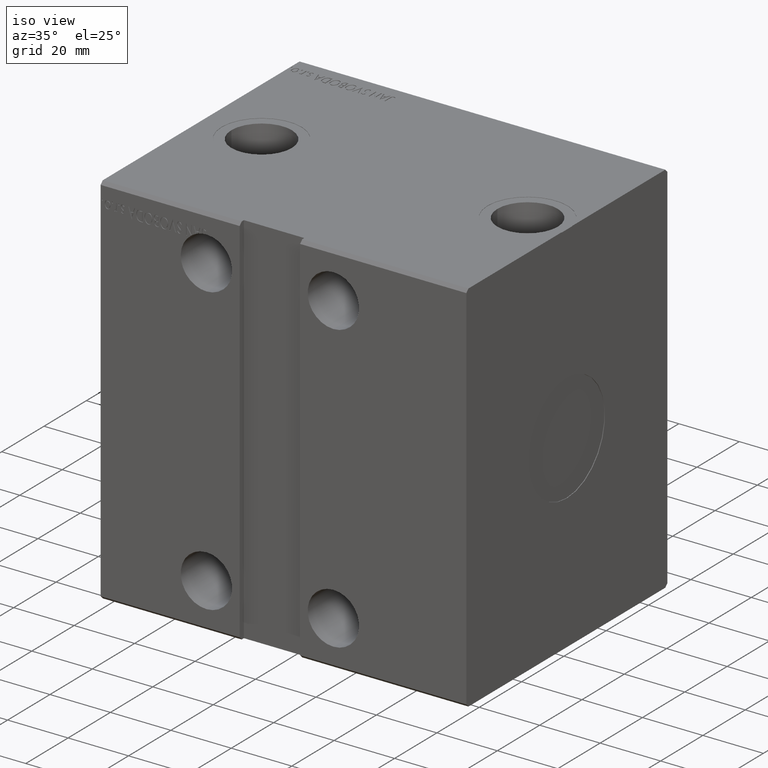
[diagram: clean part render]
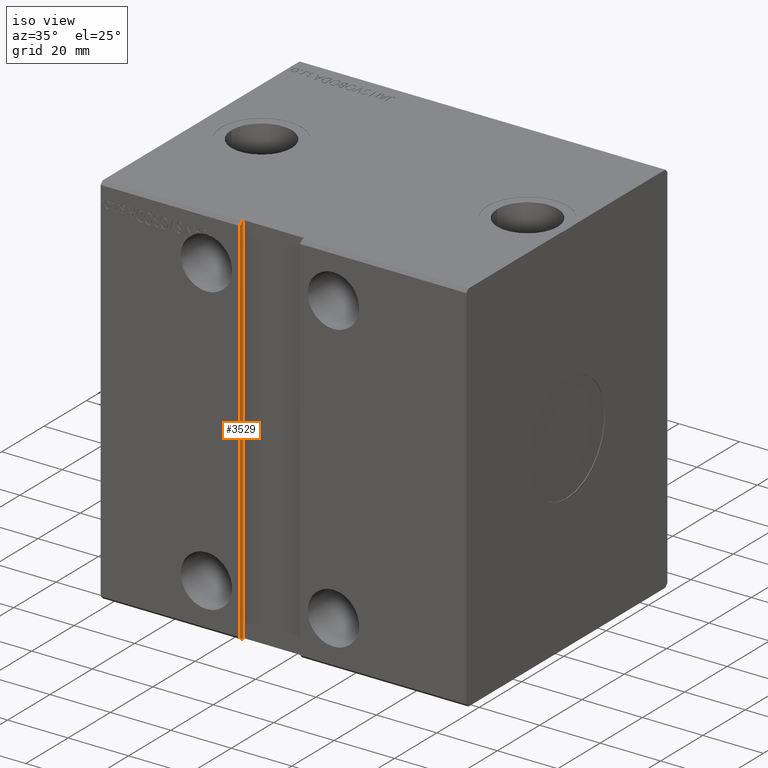
[diagram: same view with one face highlighted and labeled with its STEP entity id]
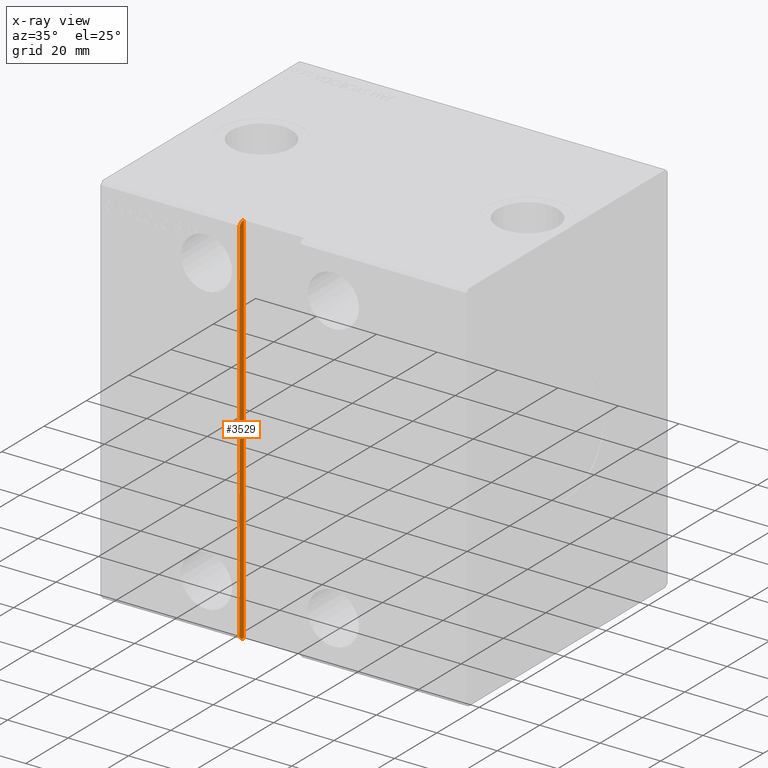
[diagram: x-ray of the same camera — body ghosted, the highlighted face saturated]
A machine part, iso view. The second image highlights one B-rep face of the part: STEP entity #3529.
The next image is the same camera in x-ray: the body ghosted, the highlighted face saturated — about 0% of this face is hidden behind the body in this view.
In plain terms, the highlighted planar face has unit normal (-1, 0, -0).
Its self-contained STEP definition (entity closure, byte-faithful):
#22 = CARTESIAN_POINT ( 'NONE',  ( 46.00000000000000000, -47.49999999999999289, -61.50000000000001421 ) ) ;
#732 = VERTEX_POINT ( 'NONE', #24851 ) ;
#1905 = DIRECTION ( 'NONE',  ( -1.110223024625156540E-16, 0.000000000000000000, 1.000000000000000000 ) ) ;
#2378 = VERTEX_POINT ( 'NONE', #22 ) ;
#3529 = ADVANCED_FACE ( 'NONE', ( #30468 ), #24447, .F. ) ;
#5166 = EDGE_LOOP ( 'NONE', ( #17631, #34273, #6024, #39409, #42284, #7233 ) ) ;
#5895 = CARTESIAN_POINT ( 'NONE',  ( 46.00000000000000000, -47.50000000000000711, 61.49999999999998579 ) ) ;
#6024 = ORIENTED_EDGE ( 'NONE', *, *, #14456, .F. ) ;
#7019 = VERTEX_POINT ( 'NONE', #22196 ) ;
#7233 = ORIENTED_EDGE ( 'NONE', *, *, #40219, .F. ) ;
#8510 = CARTESIAN_POINT ( 'NONE',  ( 46.00000000000001421, -47.49999999999998579, -61.50000000000002132 ) ) ;
#10150 = EDGE_CURVE ( 'NONE', #7019, #2378, #25235, .T. ) ;
#10239 = VECTOR ( 'NONE', #41935, 1000.000000000000114 ) ;
#10360 = VECTOR ( 'NONE', #20611, 1000.000000000000000 ) ;
#12136 = AXIS2_PLACEMENT_3D ( 'NONE', #20813, #17999, #1905 ) ;
#12171 = CARTESIAN_POINT ( 'NONE',  ( 46.00000000000000000, -47.50000000000000711, 62.49999999999997868 ) ) ;
#12584 = VECTOR ( 'NONE', #14541, 1000.000000000000000 ) ;
#14337 = DIRECTION ( 'NONE',  ( 1.110223024625156540E-16, 0.000000000000000000, -1.000000000000000000 ) ) ;
#14456 = EDGE_CURVE ( 'NONE', #25539, #7019, #27053, .T. ) ;
#14541 = DIRECTION ( 'NONE',  ( 1.110223024625156540E-16, 0.000000000000000000, -1.000000000000000000 ) ) ;
#14619 = CARTESIAN_POINT ( 'NONE',  ( 46.00000000000000000, -45.50000000000000711, 62.49999999999997868 ) ) ;
#14822 = VERTEX_POINT ( 'NONE', #29996 ) ;
#14946 = LINE ( 'NONE', #12171, #12584 ) ;
#17631 = ORIENTED_EDGE ( 'NONE', *, *, #19165, .T. ) ;
#17999 = DIRECTION ( 'NONE',  ( -1.000000000000000000, 6.114063315515033944E-33, -1.110223024625156540E-16 ) ) ;
#18047 = DIRECTION ( 'NONE',  ( -0.000000000000000000, -1.000000000000000000, -5.507058653894625237E-17 ) ) ;
#18054 = VECTOR ( 'NONE', #36810, 1000.000000000000114 ) ;
#18931 = EDGE_CURVE ( 'NONE', #732, #25539, #27432, .T. ) ;
#19165 = EDGE_CURVE ( 'NONE', #35608, #2378, #14946, .T. ) ;
#19962 = CARTESIAN_POINT ( 'NONE',  ( 46.00000000000001421, -45.50000000000000711, -62.50000000000002842 ) ) ;
#20611 = DIRECTION ( 'NONE',  ( -0.000000000000000000, -1.000000000000000000, -5.507058653894625237E-17 ) ) ;
#20813 = CARTESIAN_POINT ( 'NONE',  ( 46.00000000000000000, -45.50000000000000711, 62.49999999999997868 ) ) ;
#22196 = CARTESIAN_POINT ( 'NONE',  ( 46.00000000000001421, -46.49999999999998579, -62.50000000000002842 ) ) ;
#24447 = PLANE ( 'NONE',  #12136 ) ;
#24851 = CARTESIAN_POINT ( 'NONE',  ( 46.00000000000000000, -45.50000000000000711, 62.49999999999997868 ) ) ;
#25235 = LINE ( 'NONE', #8510, #10239 ) ;
#25539 = VERTEX_POINT ( 'NONE', #26625 ) ;
#26625 = CARTESIAN_POINT ( 'NONE',  ( 46.00000000000001421, -45.50000000000000711, -62.50000000000002842 ) ) ;
#27053 = LINE ( 'NONE', #19962, #10360 ) ;
#27432 = LINE ( 'NONE', #33229, #29706 ) ;
#29706 = VECTOR ( 'NONE', #14337, 1000.000000000000000 ) ;
#29996 = CARTESIAN_POINT ( 'NONE',  ( 46.00000000000000000, -46.50000000000001421, 62.49999999999997868 ) ) ;
#30181 = CARTESIAN_POINT ( 'NONE',  ( 46.00000000000000000, -46.50000000000002132, 62.49999999999997158 ) ) ;
#30379 = VECTOR ( 'NONE', #18047, 1000.000000000000000 ) ;
#30468 = FACE_OUTER_BOUND ( 'NONE', #5166, .T. ) ;
#33229 = CARTESIAN_POINT ( 'NONE',  ( 46.00000000000000000, -45.50000000000000711, 62.49999999999997868 ) ) ;
#34273 = ORIENTED_EDGE ( 'NONE', *, *, #10150, .F. ) ;
#35608 = VERTEX_POINT ( 'NONE', #5895 ) ;
#36810 = DIRECTION ( 'NONE',  ( -7.850462293418874601E-17, 0.7071067811865474617, 0.7071067811865474617 ) ) ;
#38229 = LINE ( 'NONE', #30181, #18054 ) ;
#39409 = ORIENTED_EDGE ( 'NONE', *, *, #18931, .F. ) ;
#40219 = EDGE_CURVE ( 'NONE', #35608, #14822, #38229, .T. ) ;
#40603 = EDGE_CURVE ( 'NONE', #732, #14822, #41188, .T. ) ;
#41188 = LINE ( 'NONE', #14619, #30379 ) ;
#41935 = DIRECTION ( 'NONE',  ( -7.850462293418902951E-17, -0.7071067811865451302, 0.7071067811865500152 ) ) ;
#42284 = ORIENTED_EDGE ( 'NONE', *, *, #40603, .T. ) ;